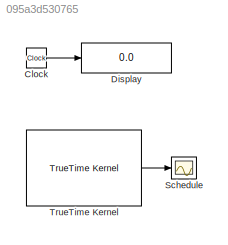
MODEL slx_095a3d530765
KIND model
CONFIG InitFcn = clear functions
BLOCK [Clock] Clock
BLOCK [Display] Display
  Decimation = 1
  Ports = [1]
BLOCK [Scope] Schedule
  DataFormat = Array
  Decimation = 1
  Grid = on
  LimitDataPoints = off
  MaxDataPoints = 5000
  Ports = [1]
  SampleInput = off
  SampleTime = -1
  SaveName = ScopeData2
  SaveToWorkspace = off
  ShowLegends = off
  TickLabels = on
  TimeRange = 2
  YMax = 1.7
  YMin = 0.8
  ZoomMode = xonly
BLOCK [Reference] TrueTime Kernel  REF=truetime/TrueTime Kernel  (lib defined in slx_0362a698a4ec)
  Ports = [0, 1]
  SourceBlock = truetime/TrueTime Kernel
  UserDataPersistent = on
  args = 4
  battery = off
  clockoffsetdrift = [0 0]
  ninputsoutputs = [0 0]
  ntriggers = 0
  nwnodenbr = []
  poweroutput = off
  schedoutput = on
  sfun = servo_init
  trigtype = falling
LINE Clock:1 -> Display:1
LINE TrueTime Kernel:1 -> Schedule:1
